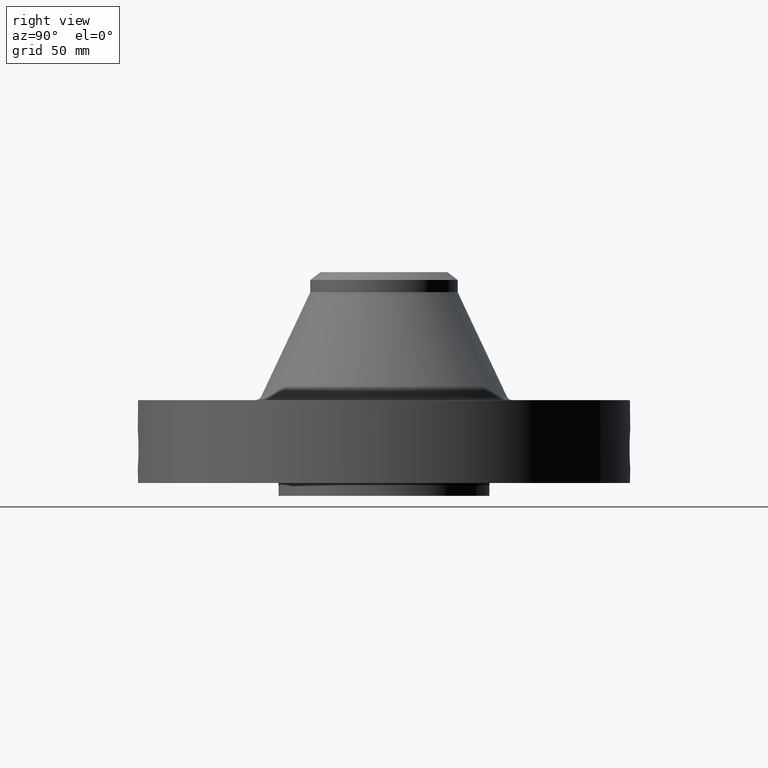
[diagram: clean part render]
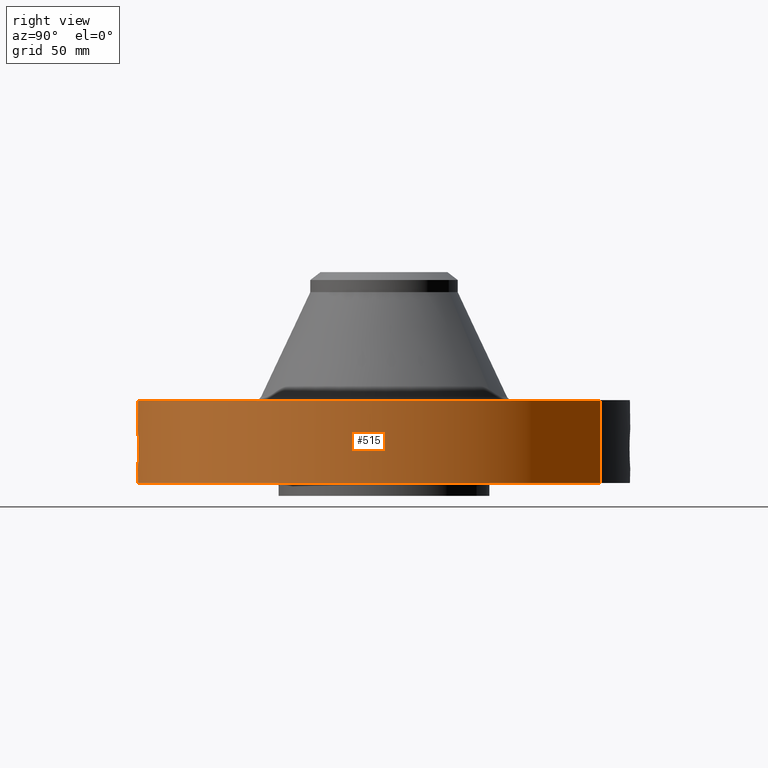
[diagram: same view with one face highlighted and labeled with its STEP entity id]
A machine part, right view. The second image highlights one B-rep face of the part: STEP entity #515.
In plain terms, the highlighted cylindrical surface (partial cylindrical patch) has radius 122.174 mm, axis along (0, 0, -1).
Its self-contained STEP definition (entity closure, byte-faithful):
#38=AXIS2_PLACEMENT_3D('Cylinder Axis2P3D',#35,#36,#37) ;
#184=AXIS2_PLACEMENT_3D('Circle Axis2P3D',#182,#183,$) ;
#404=AXIS2_PLACEMENT_3D('Circle Axis2P3D',#402,#403,$) ;
#35=CARTESIAN_POINT('Axis2P3D Location',(0.,0.,2.18500000001)) ;
#44=CARTESIAN_POINT('Vertex',(-2.3060368407,-4.22117212271,0.250000000001)) ;
#46=CARTESIAN_POINT('Vertex',(2.3060368407,4.22117212271,0.250000000001)) ;
#49=CARTESIAN_POINT('Line Origine',(-2.3060368407,-4.22117212271,1.06)) ;
#53=CARTESIAN_POINT('Vertex',(-2.3060368407,-4.22117212271,1.87000000001)) ;
#60=CARTESIAN_POINT('Vertex',(2.3060368407,4.22117212271,1.87000000001)) ;
#63=CARTESIAN_POINT('Line Origine',(2.3060368407,4.22117212271,1.06)) ;
#182=CARTESIAN_POINT('Axis2P3D Location',(0.,0.,0.250000000001)) ;
#402=CARTESIAN_POINT('Axis2P3D Location',(0.,0.,1.87000000001)) ;
#414=CARTESIAN_POINT('Control Point',(0.066136383517,-4.80954529857,1.28787373736)) ;
#415=CARTESIAN_POINT('Control Point',(0.0445883416647,-4.80984160715,1.29197985415)) ;
#416=CARTESIAN_POINT('Control Point',(0.0226550572475,-4.80999667613,1.29407393736)) ;
#417=CARTESIAN_POINT('Control Point',(0.000717057544164,-4.80999994657,1.2941184969)) ;
#418=CARTESIAN_POINT('Vertex',(0.0661112946985,-4.80954591595,1.28787882817)) ;
#420=CARTESIAN_POINT('Vertex',(0.000716838117888,-4.8099999466,1.2941185071)) ;
#424=CARTESIAN_POINT('Control Point',(0.0661111674008,-4.80954564525,1.28787818261)) ;
#425=CARTESIAN_POINT('Control Point',(0.10255844025,-4.80904464745,1.28210764728)) ;
#426=CARTESIAN_POINT('Control Point',(0.138037816401,-4.80812864859,1.26986120789)) ;
#427=CARTESIAN_POINT('Control Point',(0.170506472558,-4.8069769651,1.25214305679)) ;
#428=CARTESIAN_POINT('Vertex',(0.170506472558,-4.8069769651,1.25214305679)) ;
#432=CARTESIAN_POINT('Control Point',(0.0290043982747,-4.80991255067,0.531043458971)) ;
#433=CARTESIAN_POINT('Control Point',(0.0749239161112,-4.80963565,0.536942695613)) ;
#434=CARTESIAN_POINT('Control Point',(0.119697311392,-4.80881765719,0.550227654493)) ;
#435=CARTESIAN_POINT('Control Point',(0.161617402911,-4.80752250204,0.570530801651)) ;
#436=CARTESIAN_POINT('Control Point',(0.246169576562,-4.80406795966,0.628910145916)) ;
#437=CARTESIAN_POINT('Control Point',(0.306815626141,-4.80034710441,0.710385199046)) ;
#438=CARTESIAN_POINT('Control Point',(0.331776015624,-4.79858756843,0.760223937754)) ;
#439=CARTESIAN_POINT('Control Point',(0.360247691535,-4.7965037961,0.852909084328)) ;
#440=CARTESIAN_POINT('Control Point',(0.361080073502,-4.79642355822,0.948205291679)) ;
#441=CARTESIAN_POINT('Control Point',(0.356240011339,-4.79679649905,0.989152023587)) ;
#442=CARTESIAN_POINT('Control Point',(0.333983572294,-4.79846337657,1.07798659399)) ;
#443=CARTESIAN_POINT('Control Point',(0.287079136589,-4.8015419945,1.1568801596)) ;
#444=CARTESIAN_POINT('Control Point',(0.254034687346,-4.80350959408,1.19581857486)) ;
#445=CARTESIAN_POINT('Control Point',(0.214528499178,-4.80541547635,1.22812022906)) ;
#446=CARTESIAN_POINT('Control Point',(0.170506472558,-4.8069769651,1.25214305679)) ;
#447=CARTESIAN_POINT('Vertex',(0.0290043982747,-4.80991255067,0.531043458971)) ;
#451=CARTESIAN_POINT('Control Point',(0.0290043982747,-4.80991255067,0.531043458971)) ;
#452=CARTESIAN_POINT('Control Point',(0.0193291664143,-4.80997089357,0.530854418857)) ;
#453=CARTESIAN_POINT('Control Point',(0.00965254224402,-4.8100000055,0.530964918496)) ;
#454=CARTESIAN_POINT('Control Point',(-2.72878354371E-006,-4.81000000002,0.531374667805)) ;
#455=CARTESIAN_POINT('Vertex',(-2.72878353806E-006,-4.81000000002,0.531374667805)) ;
#459=CARTESIAN_POINT('Control Point',(-0.194572176487,-4.80606301127,0.583845834778)) ;
#460=CARTESIAN_POINT('Control Point',(-0.134832022829,-4.80848157543,0.552031306745)) ;
#461=CARTESIAN_POINT('Control Point',(-0.0678365440651,-4.80999996154,0.534253392787)) ;
#462=CARTESIAN_POINT('Control Point',(-2.72878353943E-006,-4.81000000002,0.531374667805)) ;
#463=CARTESIAN_POINT('Vertex',(-0.194572176487,-4.80606301127,0.583845834778)) ;
#467=CARTESIAN_POINT('Control Point',(-0.339648520063,-4.79799321415,0.711044709016)) ;
#468=CARTESIAN_POINT('Control Point',(-0.311639247585,-4.79997598226,0.671098882295)) ;
#469=CARTESIAN_POINT('Control Point',(-0.277013389779,-4.80221127278,0.635884164624)) ;
#470=CARTESIAN_POINT('Control Point',(-0.237466072878,-4.80432646334,0.606688913078)) ;
#471=CARTESIAN_POINT('Control Point',(-0.194572176487,-4.80606301127,0.583845834778)) ;
#472=CARTESIAN_POINT('Vertex',(-0.339648520063,-4.79799321415,0.711044709016)) ;
#476=CARTESIAN_POINT('Control Point',(-0.339648520063,-4.79799321415,0.711044709016)) ;
#477=CARTESIAN_POINT('Control Point',(-0.372745911419,-4.79565025961,0.762239626968)) ;
#478=CARTESIAN_POINT('Control Point',(-0.394857855452,-4.79377645609,0.820261728228)) ;
#479=CARTESIAN_POINT('Control Point',(-0.405089618056,-4.79291168305,0.880383268009)) ;
#480=CARTESIAN_POINT('Vertex',(-0.405089618056,-4.79291168305,0.880383268009)) ;
#484=CARTESIAN_POINT('Control Point',(-0.405089618056,-4.79291168305,0.880383268009)) ;
#485=CARTESIAN_POINT('Control Point',(-0.41107301188,-4.79240597569,0.93053391288)) ;
#486=CARTESIAN_POINT('Control Point',(-0.408213933148,-4.79263821702,0.981647090777)) ;
#487=CARTESIAN_POINT('Control Point',(-0.396081234052,-4.79370836615,1.03150545523)) ;
#488=CARTESIAN_POINT('Control Point',(-0.362696077286,-4.79644916997,1.10747831831)) ;
#489=CARTESIAN_POINT('Control Point',(-0.311278213824,-4.79998544681,1.17035839569)) ;
#490=CARTESIAN_POINT('Control Point',(-0.288787399264,-4.80141213509,1.19262128557)) ;
#491=CARTESIAN_POINT('Control Point',(-0.224261430204,-4.80507887493,1.24470576413)) ;
#492=CARTESIAN_POINT('Control Point',(-0.148935234441,-4.80805353195,1.27818820564)) ;
#493=CARTESIAN_POINT('Control Point',(-0.0996981900049,-4.80936214464,1.29128339842)) ;
#494=CARTESIAN_POINT('Control Point',(-0.0495375374331,-4.8100002664,1.29658273782)) ;
#495=CARTESIAN_POINT('Control Point',(2.58579355166E-005,-4.80999999995,1.29415298437)) ;
#496=CARTESIAN_POINT('Vertex',(2.5857935515E-005,-4.80999999995,1.29415298437)) ;
#500=CARTESIAN_POINT('Control Point',(0.000716838106226,-4.8099999466,1.29411850709)) ;
#501=CARTESIAN_POINT('Control Point',(0.000371371190183,-4.80999999809,1.29413604624)) ;
#502=CARTESIAN_POINT('Control Point',(2.58579431575E-005,-4.80999999995,1.29415298437)) ;
#36=DIRECTION('Axis2P3D Direction',(0.,0.,-0.0393700787402)) ;
#37=DIRECTION('Axis2P3D XDirection',(0.0188750212049,0.0345504945626,0.)) ;
#50=DIRECTION('Vector Direction',(0.,0.,-0.0393700787402)) ;
#64=DIRECTION('Vector Direction',(0.,0.,-0.0393700787402)) ;
#183=DIRECTION('Axis2P3D Direction',(0.,0.,-0.0393700787402)) ;
#403=DIRECTION('Axis2P3D Direction',(0.,0.,-0.0393700787402)) ;
#51=VECTOR('Line Direction',#50,0.0393700787402) ;
#65=VECTOR('Line Direction',#64,0.0393700787402) ;
#408=ORIENTED_EDGE('',*,*,#186,.F.) ;
#409=ORIENTED_EDGE('',*,*,#67,.T.) ;
#410=ORIENTED_EDGE('',*,*,#406,.T.) ;
#411=ORIENTED_EDGE('',*,*,#55,.F.) ;
#505=ORIENTED_EDGE('',*,*,#422,.F.) ;
#506=ORIENTED_EDGE('',*,*,#430,.T.) ;
#507=ORIENTED_EDGE('',*,*,#449,.F.) ;
#508=ORIENTED_EDGE('',*,*,#457,.T.) ;
#509=ORIENTED_EDGE('',*,*,#465,.F.) ;
#510=ORIENTED_EDGE('',*,*,#474,.F.) ;
#511=ORIENTED_EDGE('',*,*,#482,.T.) ;
#512=ORIENTED_EDGE('',*,*,#498,.T.) ;
#513=ORIENTED_EDGE('',*,*,#503,.F.) ;
#514=FACE_BOUND('',#504,.T.) ;
#515=ADVANCED_FACE('PartBody',(#412,#514),#39,.T.) ;
#413=B_SPLINE_CURVE_WITH_KNOTS('',3,(#414,#415,#416,#417),.UNSPECIFIED.,.F.,.U.,(4,4),(4.08821314231,6.52203864529),.UNSPECIFIED.) ;
#423=B_SPLINE_CURVE_WITH_KNOTS('',3,(#424,#425,#426,#427),.UNSPECIFIED.,.F.,.U.,(4,4),(0.,4.14620402267),.UNSPECIFIED.) ;
#431=B_SPLINE_CURVE_WITH_KNOTS('',5,(#432,#433,#434,#435,#436,#437,#438,#439,#440,#441,#442,#443,#444,#445,#446),.UNSPECIFIED.,.F.,.U.,(6,3,3,3,6),(0.,8.04666309825,18.0002534959,25.6058567399,34.975113444),.UNSPECIFIED.) ;
#450=B_SPLINE_CURVE_WITH_KNOTS('',3,(#451,#452,#453,#454),.UNSPECIFIED.,.F.,.U.,(4,4),(0.,1.0090887182),.UNSPECIFIED.) ;
#458=B_SPLINE_CURVE_WITH_KNOTS('',3,(#459,#460,#461,#462),.UNSPECIFIED.,.F.,.U.,(4,4),(0.,7.08942686201),.UNSPECIFIED.) ;
#466=B_SPLINE_CURVE_WITH_KNOTS('',4,(#467,#468,#469,#470,#471),.UNSPECIFIED.,.F.,.U.,(5,5),(0.,6.78701832538),.UNSPECIFIED.) ;
#475=B_SPLINE_CURVE_WITH_KNOTS('',3,(#476,#477,#478,#479),.UNSPECIFIED.,.F.,.U.,(4,4),(0.,6.36003946556),.UNSPECIFIED.) ;
#483=B_SPLINE_CURVE_WITH_KNOTS('',5,(#484,#485,#486,#487,#488,#489,#490,#491,#492,#493,#494,#495),.UNSPECIFIED.,.F.,.U.,(6,3,3,6),(0.,8.77851509133,14.4222277486,23.6866522905),.UNSPECIFIED.) ;
#499=B_SPLINE_CURVE_WITH_KNOTS('',2,(#500,#501,#502),.UNSPECIFIED.,.F.,.U.,(3,3),(1.10100361363,1.12683704645),.UNSPECIFIED.) ;
#185=CIRCLE('generated circle',#184,4.81000000002) ;
#405=CIRCLE('generated circle',#404,4.81000000002) ;
#39=CYLINDRICAL_SURFACE('generated cylinder',#38,4.81000000002) ;
#55=EDGE_CURVE('',#45,#54,#52,.F.) ;
#67=EDGE_CURVE('',#47,#61,#66,.F.) ;
#186=EDGE_CURVE('',#47,#45,#185,.T.) ;
#406=EDGE_CURVE('',#61,#54,#405,.T.) ;
#422=EDGE_CURVE('',#419,#421,#413,.T.) ;
#430=EDGE_CURVE('',#419,#429,#423,.T.) ;
#449=EDGE_CURVE('',#448,#429,#431,.T.) ;
#457=EDGE_CURVE('',#448,#456,#450,.T.) ;
#465=EDGE_CURVE('',#464,#456,#458,.T.) ;
#474=EDGE_CURVE('',#473,#464,#466,.T.) ;
#482=EDGE_CURVE('',#473,#481,#475,.T.) ;
#498=EDGE_CURVE('',#481,#497,#483,.T.) ;
#503=EDGE_CURVE('',#421,#497,#499,.T.) ;
#407=EDGE_LOOP('',(#408,#409,#410,#411)) ;
#504=EDGE_LOOP('',(#505,#506,#507,#508,#509,#510,#511,#512,#513)) ;
#412=FACE_OUTER_BOUND('',#407,.T.) ;
#52=LINE('Line',#49,#51) ;
#66=LINE('Line',#63,#65) ;
#45=VERTEX_POINT('',#44) ;
#47=VERTEX_POINT('',#46) ;
#54=VERTEX_POINT('',#53) ;
#61=VERTEX_POINT('',#60) ;
#419=VERTEX_POINT('',#418) ;
#421=VERTEX_POINT('',#420) ;
#429=VERTEX_POINT('',#428) ;
#448=VERTEX_POINT('',#447) ;
#456=VERTEX_POINT('',#455) ;
#464=VERTEX_POINT('',#463) ;
#473=VERTEX_POINT('',#472) ;
#481=VERTEX_POINT('',#480) ;
#497=VERTEX_POINT('',#496) ;